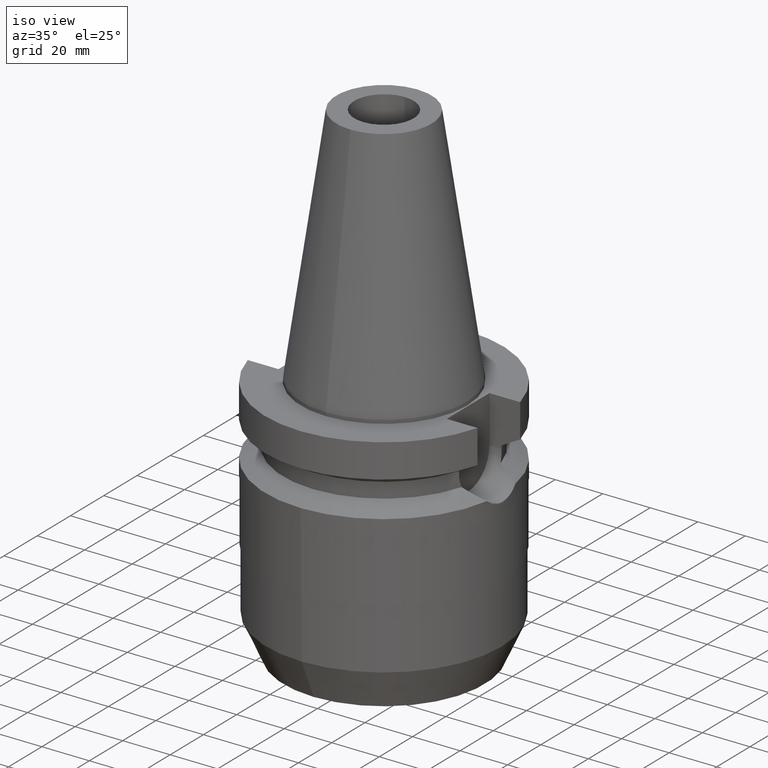
[diagram: clean part render]
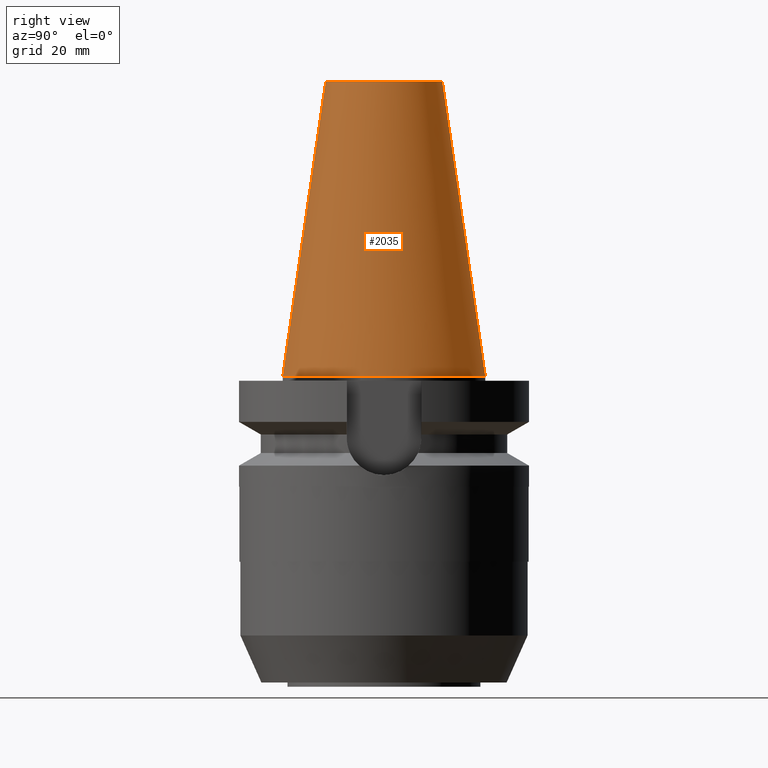
[diagram: tour spotlight — one face highlighted and labeled with its STEP entity id]
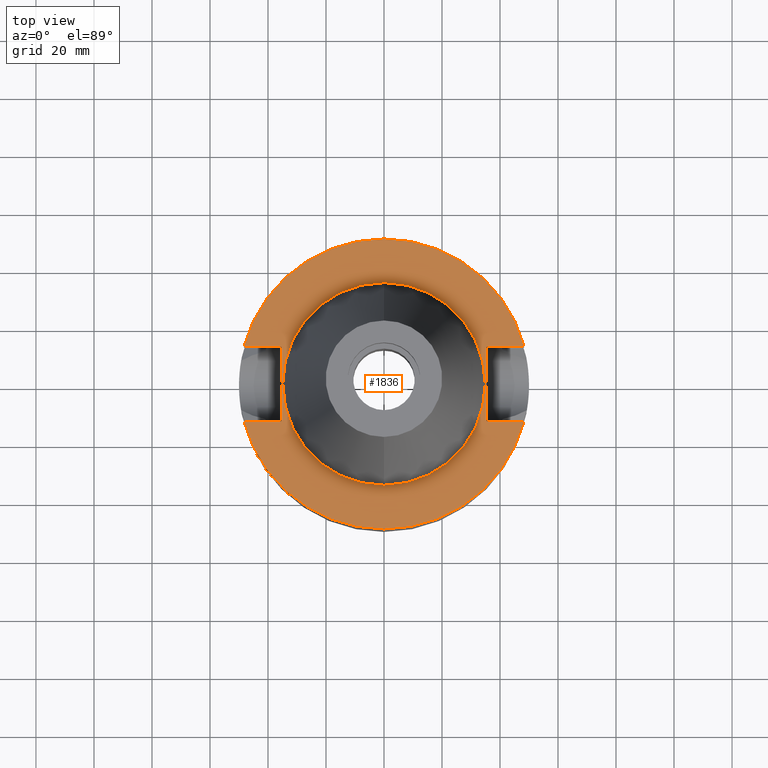
[diagram: tour spotlight — one face highlighted and labeled with its STEP entity id]
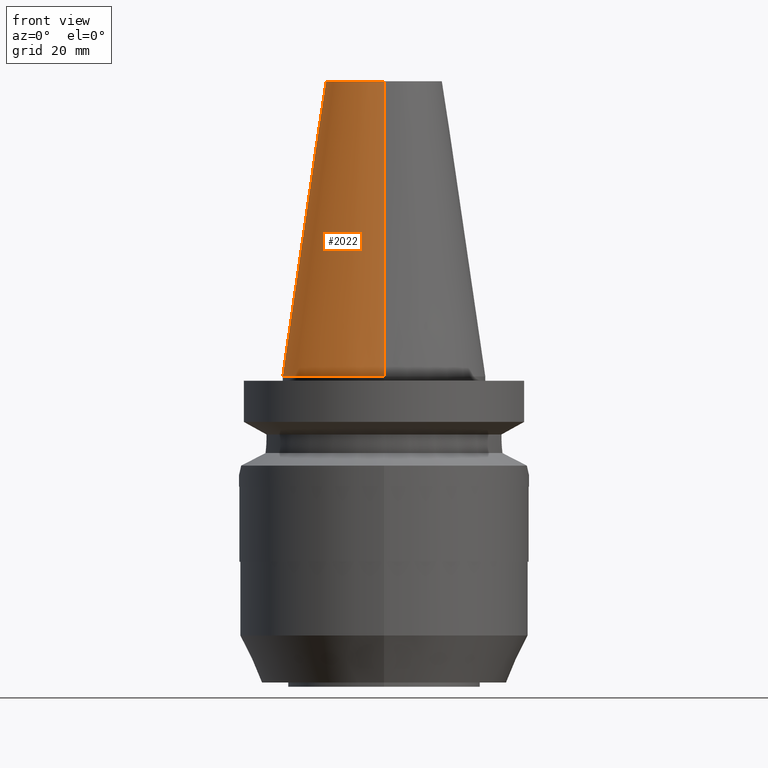
[diagram: tour spotlight — one face highlighted and labeled with its STEP entity id]
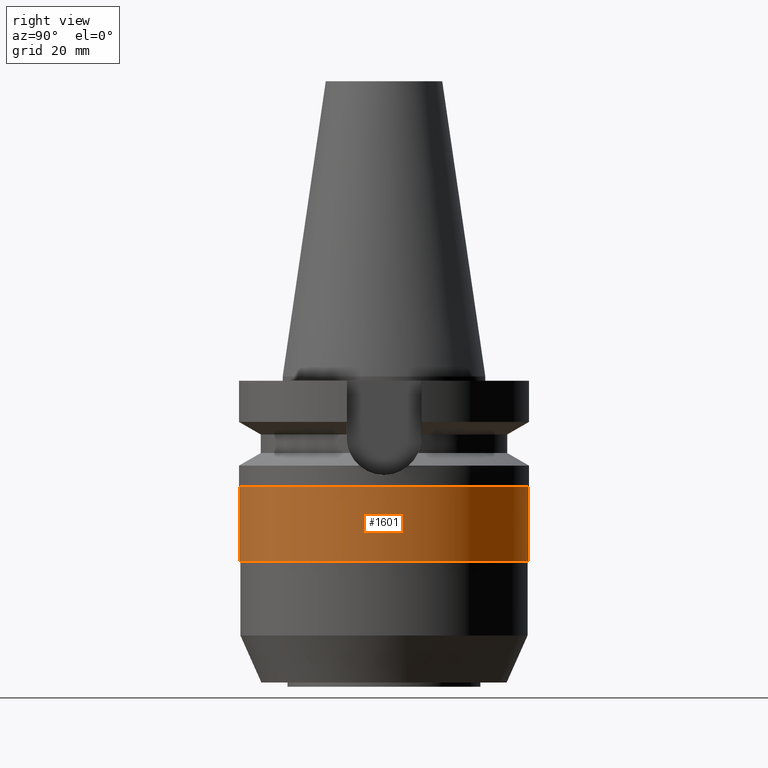
[diagram: tour spotlight — one face highlighted and labeled with its STEP entity id]
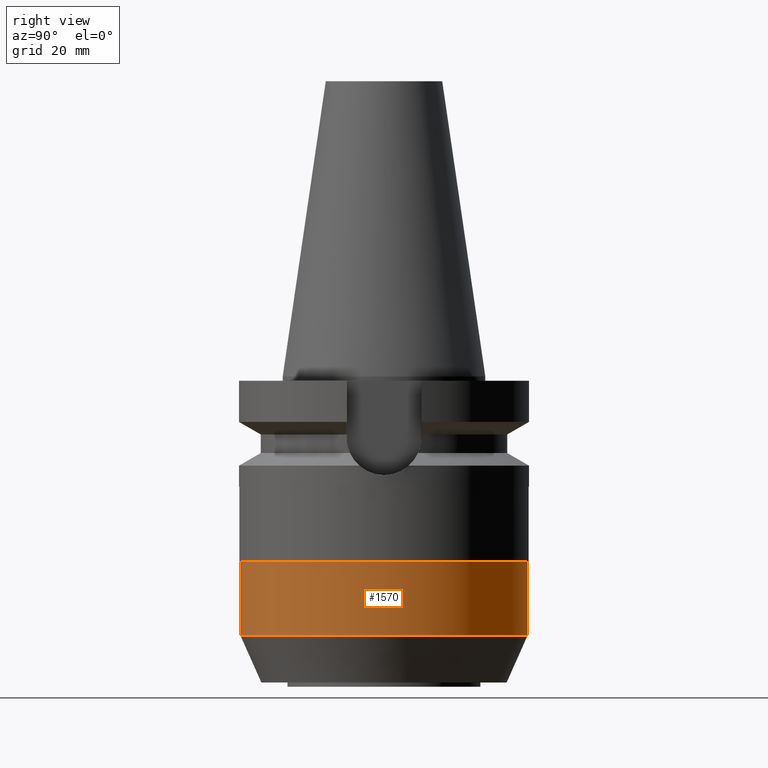
[diagram: tour spotlight — one face highlighted and labeled with its STEP entity id]
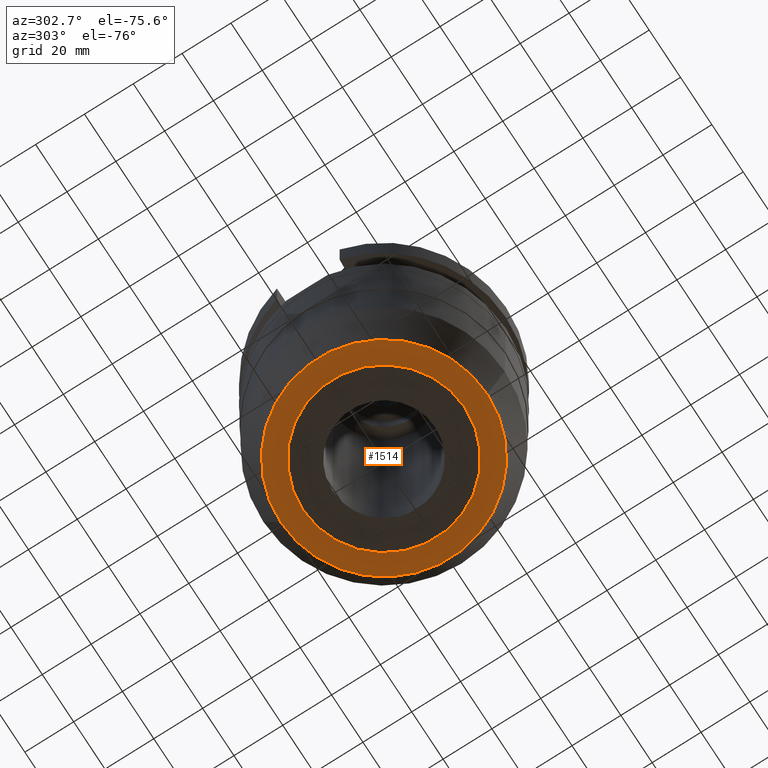
[diagram: tour spotlight — one face highlighted and labeled with its STEP entity id]
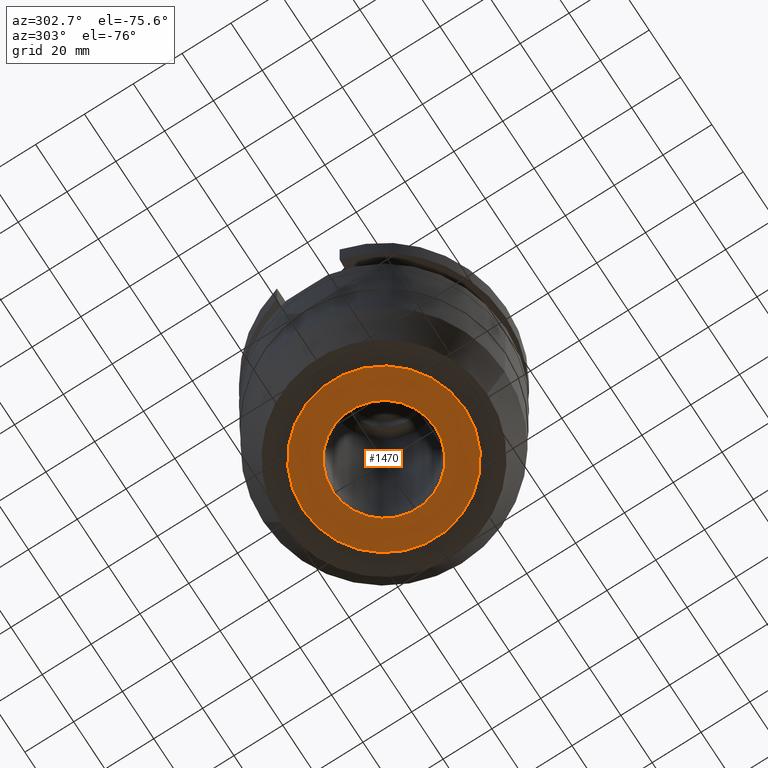
[diagram: tour spotlight — one face highlighted and labeled with its STEP entity id]
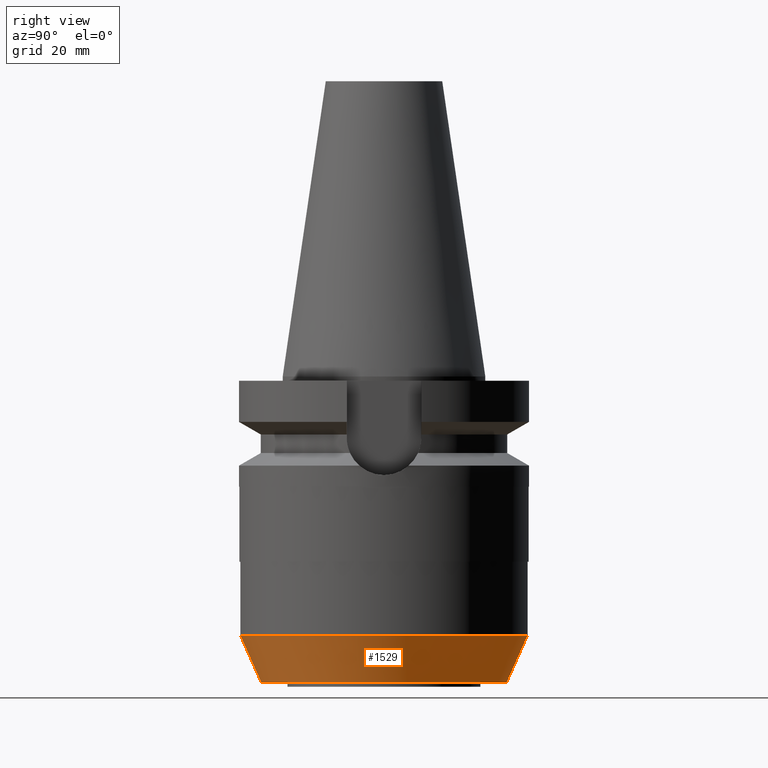
[diagram: tour spotlight — one face highlighted and labeled with its STEP entity id]
A machine part: a face-by-face anatomy tour. The part has 52 B-rep faces; the first image is the clean iso view, then the 8 largest visible faces are spotlighted one at a time (largest first), each with its STEP entity span.

Face 1 — right view, entity #2035. In plain terms, the highlighted conical surface has half-angle 8.297 deg.
Definition (entity closure, byte-faithful):
#994=DIRECTION('',(0.E0,-1.443043893539E-1,-9.895333461856E-1));
#995=VECTOR('',#994,1.028767755957E2);
#996=CARTESIAN_POINT('',(0.E0,-2.007942971896E1,1.018E2));
#997=LINE('',#996,#995);
#1009=DIRECTION('',(0.E0,1.443043893539E-1,-9.895333461856E-1));
#1010=VECTOR('',#1009,1.028767755957E2);
#1011=CARTESIAN_POINT('',(0.E0,2.007942971896E1,1.018E2));
#1012=LINE('',#1011,#1010);
#1016=CARTESIAN_POINT('',(0.E0,1.847992019913E-14,3.979039320257E-13));
#1017=DIRECTION('',(0.E0,0.E0,-1.E0));
#1018=DIRECTION('',(0.E0,1.E0,0.E0));
#1019=AXIS2_PLACEMENT_3D('',#1016,#1017,#1018);
#1032=CARTESIAN_POINT('',(0.E0,1.847992019913E-14,1.018E2));
#1033=DIRECTION('',(0.E0,0.E0,-1.E0));
#1034=DIRECTION('',(0.E0,1.E0,0.E0));
#1035=AXIS2_PLACEMENT_3D('',#1032,#1033,#1034);
#1205=CARTESIAN_POINT('',(0.E0,3.4925E1,3.694822225953E-13));
#1206=VERTEX_POINT('',#1205);
#1207=CARTESIAN_POINT('',(0.E0,-3.4925E1,3.694822225953E-13));
#1208=VERTEX_POINT('',#1207);
#1209=CARTESIAN_POINT('',(0.E0,2.007942971896E1,1.018E2));
#1210=VERTEX_POINT('',#1209);
#1211=CARTESIAN_POINT('',(0.E0,-2.007942971896E1,1.018E2));
#1212=VERTEX_POINT('',#1211);
#2023=CARTESIAN_POINT('',(0.E0,1.847992019913E-14,5.09E1));
#2024=DIRECTION('',(0.E0,0.E0,-1.E0));
#2025=DIRECTION('',(0.E0,-1.E0,0.E0));
#2026=AXIS2_PLACEMENT_3D('',#2023,#2024,#2025);
#2027=CONICAL_SURFACE('',#2026,2.750221485948E1,8.297E0);
#2028=ORIENTED_EDGE('',*,*,#2013,.T.);
#2029=ORIENTED_EDGE('',*,*,#1990,.T.);
#2030=ORIENTED_EDGE('',*,*,#2017,.F.);
#2032=ORIENTED_EDGE('',*,*,#2031,.F.);
#2033=EDGE_LOOP('',(#2028,#2029,#2030,#2032));
#2034=FACE_OUTER_BOUND('',#2033,.F.);
#1020=CIRCLE('',#1019,3.4925E1);
#1036=CIRCLE('',#1035,2.007942971896E1);
#1990=EDGE_CURVE('',#1206,#1208,#1020,.T.);
#2013=EDGE_CURVE('',#1210,#1206,#1012,.T.);
#2017=EDGE_CURVE('',#1212,#1208,#997,.T.);
#2031=EDGE_CURVE('',#1210,#1212,#1036,.T.);
#2035=ADVANCED_FACE('',(#2034),#2027,.T.);

Face 2 — top view, entity #1836. In plain terms, the highlighted planar face has unit normal (0, 0, -1).
Definition (entity closure, byte-faithful):
#664=DIRECTION('',(1.E0,0.E0,0.E0));
#665=VECTOR('',#664,1.292057015392E1);
#666=CARTESIAN_POINT('',(3.54E1,1.285E1,-1.5E0));
#667=LINE('',#666,#665);
#711=DIRECTION('',(0.E0,1.E0,0.E0));
#712=VECTOR('',#711,2.57E1);
#713=CARTESIAN_POINT('',(-3.54E1,-1.285E1,-1.5E0));
#714=LINE('',#713,#712);
#718=DIRECTION('',(-1.E0,0.E0,0.E0));
#719=VECTOR('',#718,1.292057015392E1);
#720=CARTESIAN_POINT('',(-3.54E1,1.285E1,-1.5E0));
#721=LINE('',#720,#719);
#725=CARTESIAN_POINT('',(0.E0,2.599190366510E-14,-1.5E0));
#726=DIRECTION('',(0.E0,0.E0,-1.E0));
#727=DIRECTION('',(-9.664114030784E-1,2.57E-1,0.E0));
#728=AXIS2_PLACEMENT_3D('',#725,#726,#727);
#733=CARTESIAN_POINT('',(0.E0,2.599190366510E-14,-1.5E0));
#734=DIRECTION('',(0.E0,0.E0,-1.E0));
#735=DIRECTION('',(0.E0,1.E0,0.E0));
#736=AXIS2_PLACEMENT_3D('',#733,#734,#735);
#741=DIRECTION('',(0.E0,-1.E0,0.E0));
#742=VECTOR('',#741,2.57E1);
#743=CARTESIAN_POINT('',(3.54E1,1.285E1,-1.5E0));
#744=LINE('',#743,#742);
#748=DIRECTION('',(1.E0,0.E0,0.E0));
#749=VECTOR('',#748,1.292057015392E1);
#750=CARTESIAN_POINT('',(3.54E1,-1.285E1,-1.5E0));
#751=LINE('',#750,#749);
#755=CARTESIAN_POINT('',(0.E0,2.599190366510E-14,-1.5E0));
#756=DIRECTION('',(0.E0,0.E0,-1.E0));
#757=DIRECTION('',(9.664114030784E-1,-2.57E-1,0.E0));
#758=AXIS2_PLACEMENT_3D('',#755,#756,#757);
#763=CARTESIAN_POINT('',(0.E0,2.599190366510E-14,-1.5E0));
#764=DIRECTION('',(0.E0,0.E0,-1.E0));
#765=DIRECTION('',(0.E0,-1.E0,0.E0));
#766=AXIS2_PLACEMENT_3D('',#763,#764,#765);
#771=CARTESIAN_POINT('',(0.E0,2.599190366510E-14,-1.5E0));
#772=DIRECTION('',(0.E0,0.E0,1.E0));
#773=DIRECTION('',(0.E0,-1.E0,0.E0));
#774=AXIS2_PLACEMENT_3D('',#771,#772,#773);
#779=CARTESIAN_POINT('',(0.E0,2.599190366510E-14,-1.5E0));
#780=DIRECTION('',(0.E0,0.E0,1.E0));
#781=DIRECTION('',(0.E0,1.E0,0.E0));
#782=AXIS2_PLACEMENT_3D('',#779,#780,#781);
#817=DIRECTION('',(-1.E0,0.E0,0.E0));
#818=VECTOR('',#817,1.292057015392E1);
#819=CARTESIAN_POINT('',(-3.54E1,-1.285E1,-1.5E0));
#820=LINE('',#819,#818);
#1179=CARTESIAN_POINT('',(-3.54E1,-1.285E1,-1.5E0));
#1180=VERTEX_POINT('',#1179);
#1181=CARTESIAN_POINT('',(-4.832057015392E1,-1.285E1,-1.5E0));
#1182=VERTEX_POINT('',#1181);
#1185=CARTESIAN_POINT('',(-3.54E1,1.285E1,-1.5E0));
#1186=VERTEX_POINT('',#1185);
#1187=CARTESIAN_POINT('',(-4.832057015392E1,1.285E1,-1.5E0));
#1188=VERTEX_POINT('',#1187);
#1189=CARTESIAN_POINT('',(-1.065814103640E-14,5.E1,-1.5E0));
#1190=CARTESIAN_POINT('',(4.832057015392E1,1.285E1,-1.5E0));
#1191=VERTEX_POINT('',#1189);
#1192=VERTEX_POINT('',#1190);
#1193=CARTESIAN_POINT('',(3.54E1,1.285E1,-1.5E0));
#1194=VERTEX_POINT('',#1193);
#1195=CARTESIAN_POINT('',(3.54E1,-1.285E1,-1.5E0));
#1196=VERTEX_POINT('',#1195);
#1197=CARTESIAN_POINT('',(4.832057015392E1,-1.285E1,-1.5E0));
#1198=VERTEX_POINT('',#1197);
#1199=CARTESIAN_POINT('',(1.065814103640E-14,-5.E1,-1.5E0));
#1200=VERTEX_POINT('',#1199);
#1201=CARTESIAN_POINT('',(0.E0,-3.4925E1,-1.5E0));
#1202=CARTESIAN_POINT('',(0.E0,3.4925E1,-1.5E0));
#1203=VERTEX_POINT('',#1201);
#1204=VERTEX_POINT('',#1202);
#1805=CARTESIAN_POINT('',(0.E0,1.206277097160E-14,-1.5E0));
#1806=DIRECTION('',(0.E0,0.E0,-1.E0));
#1807=DIRECTION('',(0.E0,-1.E0,0.E0));
#1808=AXIS2_PLACEMENT_3D('',#1805,#1806,#1807);
#1809=PLANE('',#1808);
#1811=ORIENTED_EDGE('',*,*,#1810,.T.);
#1813=ORIENTED_EDGE('',*,*,#1812,.T.);
#1815=ORIENTED_EDGE('',*,*,#1814,.T.);
#1817=ORIENTED_EDGE('',*,*,#1816,.T.);
#1818=ORIENTED_EDGE('',*,*,#1781,.F.);
#1819=ORIENTED_EDGE('',*,*,#1795,.T.);
#1821=ORIENTED_EDGE('',*,*,#1820,.T.);
#1823=ORIENTED_EDGE('',*,*,#1822,.T.);
#1825=ORIENTED_EDGE('',*,*,#1824,.T.);
#1827=ORIENTED_EDGE('',*,*,#1826,.F.);
#1828=EDGE_LOOP('',(#1811,#1813,#1815,#1817,#1818,#1819,#1821,#1823,#1825,
#1827));
#1829=FACE_OUTER_BOUND('',#1828,.F.);
#1831=ORIENTED_EDGE('',*,*,#1830,.T.);
#1833=ORIENTED_EDGE('',*,*,#1832,.T.);
#1834=EDGE_LOOP('',(#1831,#1833));
#1835=FACE_BOUND('',#1834,.F.);
#729=CIRCLE('',#728,5.E1);
#737=CIRCLE('',#736,5.E1);
#759=CIRCLE('',#758,5.E1);
#767=CIRCLE('',#766,5.E1);
#775=CIRCLE('',#774,3.4925E1);
#783=CIRCLE('',#782,3.4925E1);
#1781=EDGE_CURVE('',#1194,#1192,#667,.T.);
#1795=EDGE_CURVE('',#1194,#1196,#744,.T.);
#1810=EDGE_CURVE('',#1180,#1186,#714,.T.);
#1812=EDGE_CURVE('',#1186,#1188,#721,.T.);
#1814=EDGE_CURVE('',#1188,#1191,#729,.T.);
#1816=EDGE_CURVE('',#1191,#1192,#737,.T.);
#1820=EDGE_CURVE('',#1196,#1198,#751,.T.);
#1822=EDGE_CURVE('',#1198,#1200,#759,.T.);
#1824=EDGE_CURVE('',#1200,#1182,#767,.T.);
#1826=EDGE_CURVE('',#1180,#1182,#820,.T.);
#1830=EDGE_CURVE('',#1203,#1204,#775,.T.);
#1832=EDGE_CURVE('',#1204,#1203,#783,.T.);
#1836=ADVANCED_FACE('',(#1829,#1835),#1809,.F.);

Face 3 — front view, entity #2022. In plain terms, the highlighted conical surface has half-angle 8.297 deg.
Definition (entity closure, byte-faithful):
#994=DIRECTION('',(0.E0,-1.443043893539E-1,-9.895333461856E-1));
#995=VECTOR('',#994,1.028767755957E2);
#996=CARTESIAN_POINT('',(0.E0,-2.007942971896E1,1.018E2));
#997=LINE('',#996,#995);
#1001=CARTESIAN_POINT('',(0.E0,1.847992019913E-14,3.979039320257E-13));
#1002=DIRECTION('',(0.E0,0.E0,-1.E0));
#1003=DIRECTION('',(0.E0,-1.E0,0.E0));
#1004=AXIS2_PLACEMENT_3D('',#1001,#1002,#1003);
#1009=DIRECTION('',(0.E0,1.443043893539E-1,-9.895333461856E-1));
#1010=VECTOR('',#1009,1.028767755957E2);
#1011=CARTESIAN_POINT('',(0.E0,2.007942971896E1,1.018E2));
#1012=LINE('',#1011,#1010);
#1024=CARTESIAN_POINT('',(0.E0,1.847992019913E-14,1.018E2));
#1025=DIRECTION('',(0.E0,0.E0,-1.E0));
#1026=DIRECTION('',(0.E0,-1.E0,0.E0));
#1027=AXIS2_PLACEMENT_3D('',#1024,#1025,#1026);
#1205=CARTESIAN_POINT('',(0.E0,3.4925E1,3.694822225953E-13));
#1206=VERTEX_POINT('',#1205);
#1207=CARTESIAN_POINT('',(0.E0,-3.4925E1,3.694822225953E-13));
#1208=VERTEX_POINT('',#1207);
#1209=CARTESIAN_POINT('',(0.E0,2.007942971896E1,1.018E2));
#1210=VERTEX_POINT('',#1209);
#1211=CARTESIAN_POINT('',(0.E0,-2.007942971896E1,1.018E2));
#1212=VERTEX_POINT('',#1211);
#2008=CARTESIAN_POINT('',(0.E0,1.847992019913E-14,5.09E1));
#2009=DIRECTION('',(0.E0,0.E0,-1.E0));
#2010=DIRECTION('',(0.E0,-1.E0,0.E0));
#2011=AXIS2_PLACEMENT_3D('',#2008,#2009,#2010);
#2012=CONICAL_SURFACE('',#2011,2.750221485948E1,8.297E0);
#2014=ORIENTED_EDGE('',*,*,#2013,.F.);
#2016=ORIENTED_EDGE('',*,*,#2015,.F.);
#2018=ORIENTED_EDGE('',*,*,#2017,.T.);
#2019=ORIENTED_EDGE('',*,*,#2001,.T.);
#2020=EDGE_LOOP('',(#2014,#2016,#2018,#2019));
#2021=FACE_OUTER_BOUND('',#2020,.F.);
#1005=CIRCLE('',#1004,3.4925E1);
#1028=CIRCLE('',#1027,2.007942971896E1);
#2001=EDGE_CURVE('',#1208,#1206,#1005,.T.);
#2013=EDGE_CURVE('',#1210,#1206,#1012,.T.);
#2015=EDGE_CURVE('',#1212,#1210,#1028,.T.);
#2017=EDGE_CURVE('',#1212,#1208,#997,.T.);
#2022=ADVANCED_FACE('',(#2021),#2012,.T.);

Face 4 — right view, entity #1601. In plain terms, the highlighted cylindrical surface (partial cylindrical patch) has radius 49.85 mm, axis along (0, 0, -1).
Definition (entity closure, byte-faithful):
#368=CARTESIAN_POINT('',(0.E0,2.599190366510E-14,-6.39E1));
#369=DIRECTION('',(0.E0,0.E0,1.E0));
#370=DIRECTION('',(0.E0,-1.E0,0.E0));
#371=AXIS2_PLACEMENT_3D('',#368,#369,#370);
#400=DIRECTION('',(0.E0,0.E0,-1.E0));
#401=VECTOR('',#400,2.59E1);
#402=CARTESIAN_POINT('',(0.E0,4.985E1,-3.8E1));
#403=LINE('',#402,#401);
#407=DIRECTION('',(0.E0,0.E0,-1.E0));
#408=VECTOR('',#407,2.59E1);
#409=CARTESIAN_POINT('',(0.E0,-4.985E1,-3.8E1));
#410=LINE('',#409,#408);
#438=CARTESIAN_POINT('',(0.E0,2.599190366510E-14,-3.8E1));
#439=DIRECTION('',(0.E0,0.E0,-1.E0));
#440=DIRECTION('',(0.E0,1.E0,0.E0));
#441=AXIS2_PLACEMENT_3D('',#438,#439,#440);
#1120=CARTESIAN_POINT('',(0.E0,-4.985E1,-6.39E1));
#1121=CARTESIAN_POINT('',(0.E0,4.985E1,-6.39E1));
#1122=VERTEX_POINT('',#1120);
#1123=VERTEX_POINT('',#1121);
#1124=CARTESIAN_POINT('',(0.E0,4.985E1,-3.8E1));
#1125=VERTEX_POINT('',#1124);
#1126=CARTESIAN_POINT('',(0.E0,-4.985E1,-3.8E1));
#1127=VERTEX_POINT('',#1126);
#1587=CARTESIAN_POINT('',(0.E0,2.599190366510E-14,1.1224E2));
#1588=DIRECTION('',(0.E0,0.E0,-1.E0));
#1589=DIRECTION('',(0.E0,-1.E0,0.E0));
#1590=AXIS2_PLACEMENT_3D('',#1587,#1588,#1589);
#1591=CYLINDRICAL_SURFACE('',#1590,4.985E1);
#1593=ORIENTED_EDGE('',*,*,#1592,.T.);
#1594=ORIENTED_EDGE('',*,*,#1576,.F.);
#1596=ORIENTED_EDGE('',*,*,#1595,.F.);
#1598=ORIENTED_EDGE('',*,*,#1597,.F.);
#1599=EDGE_LOOP('',(#1593,#1594,#1596,#1598));
#1600=FACE_OUTER_BOUND('',#1599,.F.);
#372=CIRCLE('',#371,4.985E1);
#442=CIRCLE('',#441,4.985E1);
#1576=EDGE_CURVE('',#1122,#1123,#372,.T.);
#1592=EDGE_CURVE('',#1125,#1123,#403,.T.);
#1595=EDGE_CURVE('',#1127,#1122,#410,.T.);
#1597=EDGE_CURVE('',#1125,#1127,#442,.T.);
#1601=ADVANCED_FACE('',(#1600),#1591,.T.);

Face 5 — right view, entity #1570. In plain terms, the highlighted cylindrical surface (partial cylindrical patch) has radius 49.5 mm, axis along (0, 0, -1).
Definition (entity closure, byte-faithful):
#331=CARTESIAN_POINT('',(0.E0,0.E0,-8.93E1));
#332=DIRECTION('',(0.E0,0.E0,1.E0));
#333=DIRECTION('',(0.E0,-1.E0,0.E0));
#334=AXIS2_PLACEMENT_3D('',#331,#332,#333);
#354=DIRECTION('',(0.E0,1.426680296211E-14,-1.E0));
#355=VECTOR('',#354,2.54E1);
#356=CARTESIAN_POINT('',(0.E0,-4.95E1,-6.39E1));
#357=LINE('',#356,#355);
#361=DIRECTION('',(0.E0,-1.454654419666E-14,-1.E0));
#362=VECTOR('',#361,2.54E1);
#363=CARTESIAN_POINT('',(0.E0,4.95E1,-6.39E1));
#364=LINE('',#363,#362);
#392=CARTESIAN_POINT('',(0.E0,2.599190366510E-14,-6.39E1));
#393=DIRECTION('',(0.E0,0.E0,-1.E0));
#394=DIRECTION('',(0.E0,1.E0,0.E0));
#395=AXIS2_PLACEMENT_3D('',#392,#393,#394);
#1112=CARTESIAN_POINT('',(0.E0,4.95E1,-8.93E1));
#1113=VERTEX_POINT('',#1112);
#1114=CARTESIAN_POINT('',(0.E0,-4.95E1,-8.93E1));
#1115=VERTEX_POINT('',#1114);
#1116=CARTESIAN_POINT('',(0.E0,4.95E1,-6.39E1));
#1117=VERTEX_POINT('',#1116);
#1118=CARTESIAN_POINT('',(0.E0,-4.95E1,-6.39E1));
#1119=VERTEX_POINT('',#1118);
#1558=CARTESIAN_POINT('',(0.E0,2.599190366510E-14,1.1224E2));
#1559=DIRECTION('',(0.E0,0.E0,-1.E0));
#1560=DIRECTION('',(0.E0,-1.E0,0.E0));
#1561=AXIS2_PLACEMENT_3D('',#1558,#1559,#1560);
#1562=CYLINDRICAL_SURFACE('',#1561,4.95E1);
#1563=ORIENTED_EDGE('',*,*,#1548,.T.);
#1564=ORIENTED_EDGE('',*,*,#1525,.F.);
#1565=ORIENTED_EDGE('',*,*,#1552,.F.);
#1567=ORIENTED_EDGE('',*,*,#1566,.F.);
#1568=EDGE_LOOP('',(#1563,#1564,#1565,#1567));
#1569=FACE_OUTER_BOUND('',#1568,.F.);
#335=CIRCLE('',#334,4.95E1);
#396=CIRCLE('',#395,4.95E1);
#1525=EDGE_CURVE('',#1115,#1113,#335,.T.);
#1548=EDGE_CURVE('',#1117,#1113,#364,.T.);
#1552=EDGE_CURVE('',#1119,#1115,#357,.T.);
#1566=EDGE_CURVE('',#1117,#1119,#396,.T.);
#1570=ADVANCED_FACE('',(#1569),#1562,.T.);

Face 6 — auxiliary view, entity #1514. In plain terms, the highlighted planar face has unit normal (0, 0, -1).
Definition (entity closure, byte-faithful):
#292=CARTESIAN_POINT('',(0.E0,0.E0,-1.055E2));
#293=DIRECTION('',(0.E0,0.E0,1.E0));
#294=DIRECTION('',(0.E0,-1.E0,0.E0));
#295=AXIS2_PLACEMENT_3D('',#292,#293,#294);
#300=CARTESIAN_POINT('',(0.E0,0.E0,-1.055E2));
#301=DIRECTION('',(0.E0,0.E0,1.E0));
#302=DIRECTION('',(0.E0,1.E0,0.E0));
#303=AXIS2_PLACEMENT_3D('',#300,#301,#302);
#308=CARTESIAN_POINT('',(0.E0,2.599190366510E-14,-1.055E2));
#309=DIRECTION('',(0.E0,0.E0,-1.E0));
#310=DIRECTION('',(0.E0,-1.E0,0.E0));
#311=AXIS2_PLACEMENT_3D('',#308,#309,#310);
#316=CARTESIAN_POINT('',(0.E0,2.599190366510E-14,-1.055E2));
#317=DIRECTION('',(0.E0,0.E0,-1.E0));
#318=DIRECTION('',(0.E0,1.E0,0.E0));
#319=AXIS2_PLACEMENT_3D('',#316,#317,#318);
#1104=CARTESIAN_POINT('',(0.E0,3.325E1,-1.055E2));
#1105=VERTEX_POINT('',#1104);
#1106=CARTESIAN_POINT('',(0.E0,-3.325E1,-1.055E2));
#1107=VERTEX_POINT('',#1106);
#1108=CARTESIAN_POINT('',(0.E0,-4.228729529800E1,-1.055E2));
#1109=CARTESIAN_POINT('',(0.E0,4.228729529800E1,-1.055E2));
#1110=VERTEX_POINT('',#1108);
#1111=VERTEX_POINT('',#1109);
#1499=CARTESIAN_POINT('',(0.E0,0.E0,-1.055E2));
#1500=DIRECTION('',(0.E0,0.E0,-1.E0));
#1501=DIRECTION('',(0.E0,-1.E0,0.E0));
#1502=AXIS2_PLACEMENT_3D('',#1499,#1500,#1501);
#1503=PLANE('',#1502);
#1505=ORIENTED_EDGE('',*,*,#1504,.T.);
#1507=ORIENTED_EDGE('',*,*,#1506,.T.);
#1508=EDGE_LOOP('',(#1505,#1507));
#1509=FACE_OUTER_BOUND('',#1508,.F.);
#1510=ORIENTED_EDGE('',*,*,#1492,.T.);
#1511=ORIENTED_EDGE('',*,*,#1481,.T.);
#1512=EDGE_LOOP('',(#1510,#1511));
#1513=FACE_BOUND('',#1512,.F.);
#296=CIRCLE('',#295,4.228729529800E1);
#304=CIRCLE('',#303,4.228729529800E1);
#312=CIRCLE('',#311,3.325E1);
#320=CIRCLE('',#319,3.325E1);
#1481=EDGE_CURVE('',#1105,#1107,#320,.T.);
#1492=EDGE_CURVE('',#1107,#1105,#312,.T.);
#1504=EDGE_CURVE('',#1110,#1111,#296,.T.);
#1506=EDGE_CURVE('',#1111,#1110,#304,.T.);
#1514=ADVANCED_FACE('',(#1509,#1513),#1503,.T.);

Face 7 — auxiliary view, entity #1470. In plain terms, the highlighted planar face has unit normal (0, 0, -1).
Definition (entity closure, byte-faithful):
#246=CARTESIAN_POINT('',(0.E0,2.599190366510E-14,-1.07E2));
#247=DIRECTION('',(0.E0,0.E0,1.E0));
#248=DIRECTION('',(0.E0,-1.E0,0.E0));
#249=AXIS2_PLACEMENT_3D('',#246,#247,#248);
#254=CARTESIAN_POINT('',(0.E0,2.599190366510E-14,-1.07E2));
#255=DIRECTION('',(0.E0,0.E0,1.E0));
#256=DIRECTION('',(0.E0,1.E0,0.E0));
#257=AXIS2_PLACEMENT_3D('',#254,#255,#256);
#262=CARTESIAN_POINT('',(0.E0,2.599190366510E-14,-1.07E2));
#263=DIRECTION('',(0.E0,0.E0,-1.E0));
#264=DIRECTION('',(0.E0,-1.E0,0.E0));
#265=AXIS2_PLACEMENT_3D('',#262,#263,#264);
#270=CARTESIAN_POINT('',(0.E0,2.599190366510E-14,-1.07E2));
#271=DIRECTION('',(0.E0,0.E0,-1.E0));
#272=DIRECTION('',(0.E0,1.E0,0.E0));
#273=AXIS2_PLACEMENT_3D('',#270,#271,#272);
#1096=CARTESIAN_POINT('',(0.E0,2.1E1,-1.07E2));
#1097=VERTEX_POINT('',#1096);
#1098=CARTESIAN_POINT('',(0.E0,-2.1E1,-1.07E2));
#1099=VERTEX_POINT('',#1098);
#1100=CARTESIAN_POINT('',(0.E0,-3.325E1,-1.07E2));
#1101=CARTESIAN_POINT('',(0.E0,3.325E1,-1.07E2));
#1102=VERTEX_POINT('',#1100);
#1103=VERTEX_POINT('',#1101);
#1455=CARTESIAN_POINT('',(0.E0,0.E0,-1.07E2));
#1456=DIRECTION('',(0.E0,0.E0,-1.E0));
#1457=DIRECTION('',(0.E0,-1.E0,0.E0));
#1458=AXIS2_PLACEMENT_3D('',#1455,#1456,#1457);
#1459=PLANE('',#1458);
#1461=ORIENTED_EDGE('',*,*,#1460,.T.);
#1463=ORIENTED_EDGE('',*,*,#1462,.T.);
#1464=EDGE_LOOP('',(#1461,#1463));
#1465=FACE_OUTER_BOUND('',#1464,.F.);
#1466=ORIENTED_EDGE('',*,*,#1434,.T.);
#1467=ORIENTED_EDGE('',*,*,#1450,.T.);
#1468=EDGE_LOOP('',(#1466,#1467));
#1469=FACE_BOUND('',#1468,.F.);
#250=CIRCLE('',#249,3.325E1);
#258=CIRCLE('',#257,3.325E1);
#266=CIRCLE('',#265,2.1E1);
#274=CIRCLE('',#273,2.1E1);
#1434=EDGE_CURVE('',#1099,#1097,#266,.T.);
#1450=EDGE_CURVE('',#1097,#1099,#274,.T.);
#1460=EDGE_CURVE('',#1102,#1103,#250,.T.);
#1462=EDGE_CURVE('',#1103,#1102,#258,.T.);
#1470=ADVANCED_FACE('',(#1465,#1469),#1459,.T.);

Face 8 — right view, entity #1529. In plain terms, the highlighted conical surface has half-angle 24 deg.
Definition (entity closure, byte-faithful):
#292=CARTESIAN_POINT('',(0.E0,0.E0,-1.055E2));
#293=DIRECTION('',(0.E0,0.E0,1.E0));
#294=DIRECTION('',(0.E0,-1.E0,0.E0));
#295=AXIS2_PLACEMENT_3D('',#292,#293,#294);
#324=DIRECTION('',(0.E0,-4.067366430758E-1,-9.135454576426E-1));
#325=VECTOR('',#324,1.773310771180E1);
#326=CARTESIAN_POINT('',(0.E0,4.95E1,-8.93E1));
#327=LINE('',#326,#325);
#331=CARTESIAN_POINT('',(0.E0,0.E0,-8.93E1));
#332=DIRECTION('',(0.E0,0.E0,1.E0));
#333=DIRECTION('',(0.E0,-1.E0,0.E0));
#334=AXIS2_PLACEMENT_3D('',#331,#332,#333);
#347=DIRECTION('',(0.E0,4.067366430758E-1,-9.135454576426E-1));
#348=VECTOR('',#347,1.773310771180E1);
#349=CARTESIAN_POINT('',(0.E0,-4.95E1,-8.93E1));
#350=LINE('',#349,#348);
#1108=CARTESIAN_POINT('',(0.E0,-4.228729529800E1,-1.055E2));
#1109=CARTESIAN_POINT('',(0.E0,4.228729529800E1,-1.055E2));
#1110=VERTEX_POINT('',#1108);
#1111=VERTEX_POINT('',#1109);
#1112=CARTESIAN_POINT('',(0.E0,4.95E1,-8.93E1));
#1113=VERTEX_POINT('',#1112);
#1114=CARTESIAN_POINT('',(0.E0,-4.95E1,-8.93E1));
#1115=VERTEX_POINT('',#1114);
#1515=CARTESIAN_POINT('',(0.E0,0.E0,-9.74E1));
#1516=DIRECTION('',(0.E0,0.E0,1.E0));
#1517=DIRECTION('',(0.E0,1.E0,0.E0));
#1518=AXIS2_PLACEMENT_3D('',#1515,#1516,#1517);
#1519=CONICAL_SURFACE('',#1518,4.589364764900E1,2.4E1);
#1521=ORIENTED_EDGE('',*,*,#1520,.T.);
#1522=ORIENTED_EDGE('',*,*,#1504,.F.);
#1524=ORIENTED_EDGE('',*,*,#1523,.F.);
#1526=ORIENTED_EDGE('',*,*,#1525,.T.);
#1527=EDGE_LOOP('',(#1521,#1522,#1524,#1526));
#1528=FACE_OUTER_BOUND('',#1527,.F.);
#296=CIRCLE('',#295,4.228729529800E1);
#335=CIRCLE('',#334,4.95E1);
#1504=EDGE_CURVE('',#1110,#1111,#296,.T.);
#1520=EDGE_CURVE('',#1113,#1111,#327,.T.);
#1523=EDGE_CURVE('',#1115,#1110,#350,.T.);
#1525=EDGE_CURVE('',#1115,#1113,#335,.T.);
#1529=ADVANCED_FACE('',(#1528),#1519,.T.);